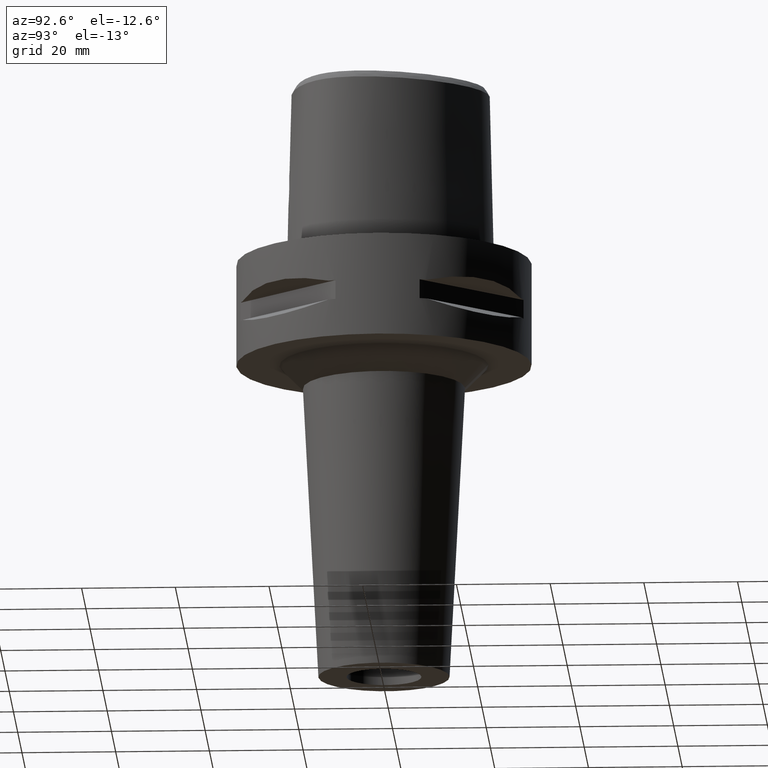
[diagram: clean part render]
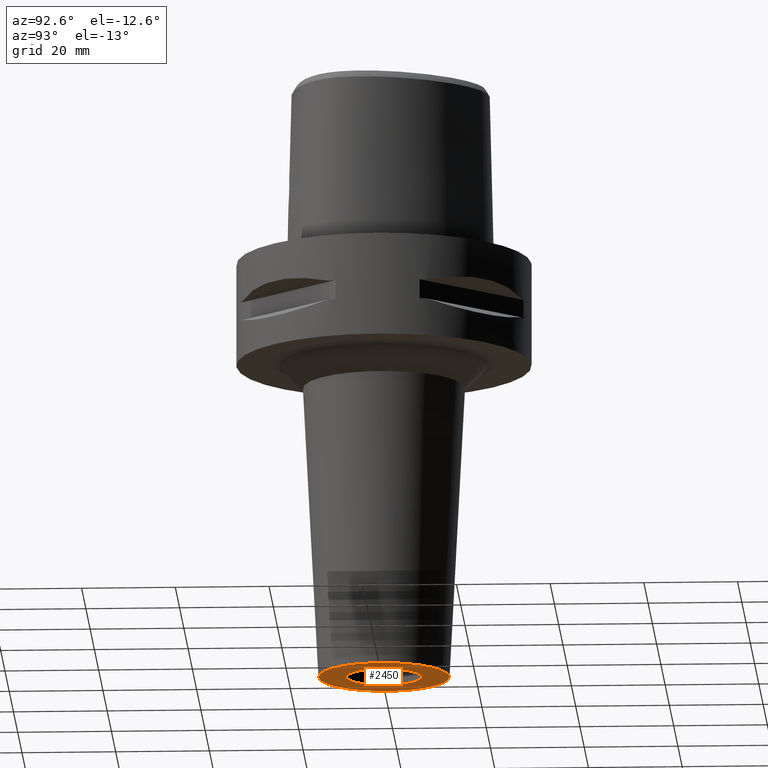
[diagram: same view with one face highlighted and labeled with its STEP entity id]
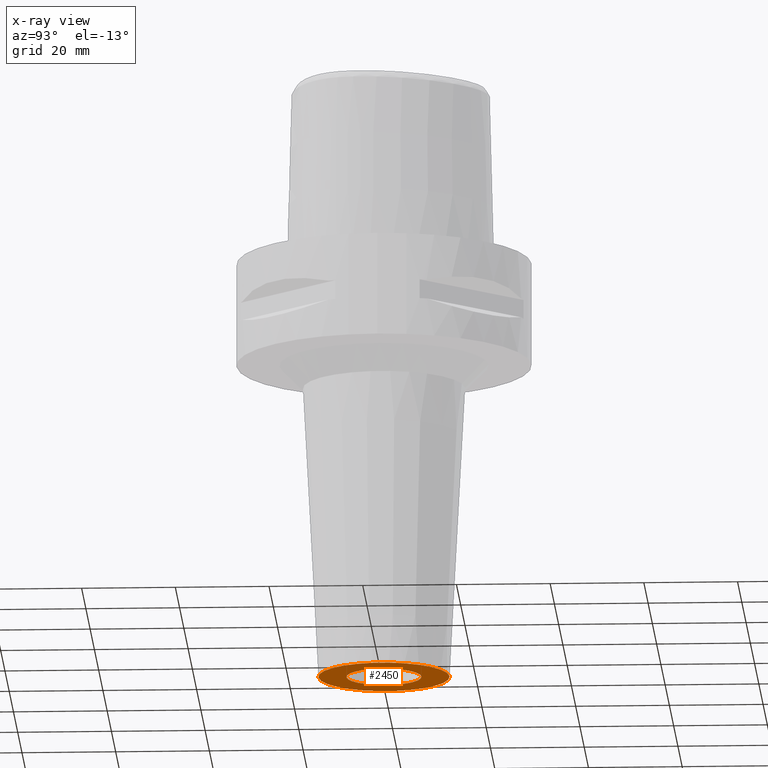
[diagram: x-ray of the same camera — body ghosted, the highlighted face saturated]
A machine part, auxiliary view. The second image highlights one B-rep face of the part: STEP entity #2450.
The next image is the same camera in x-ray: the body ghosted, the highlighted face saturated — about 0% of this face is hidden behind the body in this view.
In plain terms, the highlighted planar face has unit normal (0, 0, -1).
Its self-contained STEP definition (entity closure, byte-faithful):
#584=CARTESIAN_POINT('',(0.E0,0.E0,-9.E1));
#585=DIRECTION('',(0.E0,0.E0,1.E0));
#586=DIRECTION('',(0.E0,-1.E0,0.E0));
#587=AXIS2_PLACEMENT_3D('',#584,#585,#586);
#592=CARTESIAN_POINT('',(0.E0,0.E0,-9.E1));
#593=DIRECTION('',(0.E0,0.E0,1.E0));
#594=DIRECTION('',(0.E0,1.E0,0.E0));
#595=AXIS2_PLACEMENT_3D('',#592,#593,#594);
#600=CARTESIAN_POINT('',(0.E0,0.E0,-9.E1));
#601=DIRECTION('',(0.E0,0.E0,-1.E0));
#602=DIRECTION('',(0.E0,-1.E0,0.E0));
#603=AXIS2_PLACEMENT_3D('',#600,#601,#602);
#608=CARTESIAN_POINT('',(0.E0,0.E0,-9.E1));
#609=DIRECTION('',(0.E0,0.E0,-1.E0));
#610=DIRECTION('',(0.E0,1.E0,0.E0));
#611=AXIS2_PLACEMENT_3D('',#608,#609,#610);
#1508=CARTESIAN_POINT('',(0.E0,1.4E1,-9.E1));
#1509=VERTEX_POINT('',#1508);
#1510=CARTESIAN_POINT('',(0.E0,-1.4E1,-9.E1));
#1511=VERTEX_POINT('',#1510);
#1512=CARTESIAN_POINT('',(0.E0,-8.E0,-9.E1));
#1513=CARTESIAN_POINT('',(0.E0,8.E0,-9.E1));
#1514=VERTEX_POINT('',#1512);
#1515=VERTEX_POINT('',#1513);
#2435=CARTESIAN_POINT('',(0.E0,0.E0,-9.E1));
#2436=DIRECTION('',(0.E0,0.E0,-1.E0));
#2437=DIRECTION('',(0.E0,-1.E0,0.E0));
#2438=AXIS2_PLACEMENT_3D('',#2435,#2436,#2437);
#2439=PLANE('',#2438);
#2440=ORIENTED_EDGE('',*,*,#2414,.T.);
#2441=ORIENTED_EDGE('',*,*,#2430,.T.);
#2442=EDGE_LOOP('',(#2440,#2441));
#2443=FACE_OUTER_BOUND('',#2442,.F.);
#2445=ORIENTED_EDGE('',*,*,#2444,.T.);
#2447=ORIENTED_EDGE('',*,*,#2446,.T.);
#2448=EDGE_LOOP('',(#2445,#2447));
#2449=FACE_BOUND('',#2448,.F.);
#588=CIRCLE('',#587,1.4E1);
#596=CIRCLE('',#595,1.4E1);
#604=CIRCLE('',#603,8.E0);
#612=CIRCLE('',#611,8.E0);
#2414=EDGE_CURVE('',#1511,#1509,#588,.T.);
#2430=EDGE_CURVE('',#1509,#1511,#596,.T.);
#2444=EDGE_CURVE('',#1514,#1515,#604,.T.);
#2446=EDGE_CURVE('',#1515,#1514,#612,.T.);
#2450=ADVANCED_FACE('',(#2443,#2449),#2439,.T.);